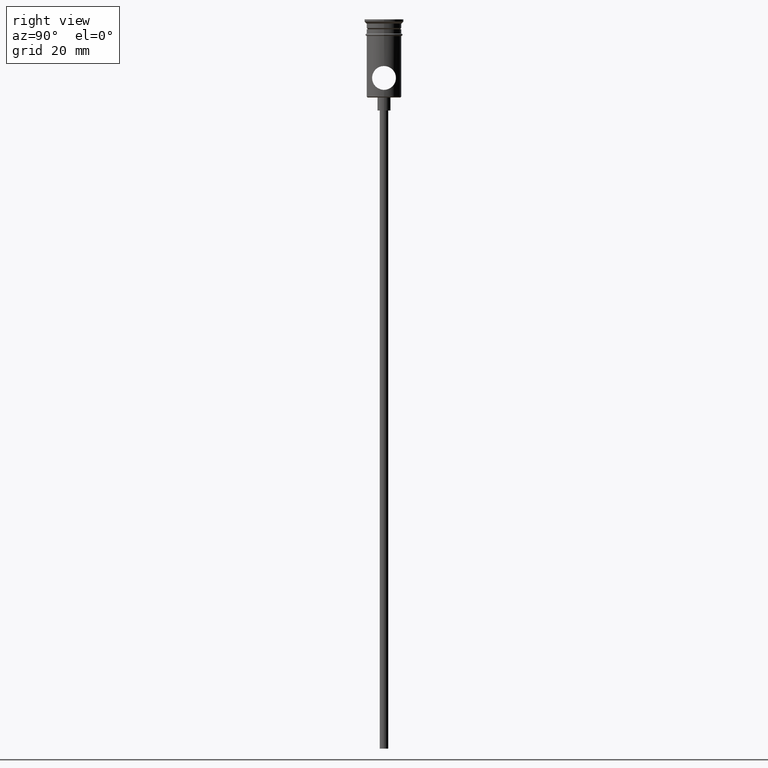
[diagram: clean part render]
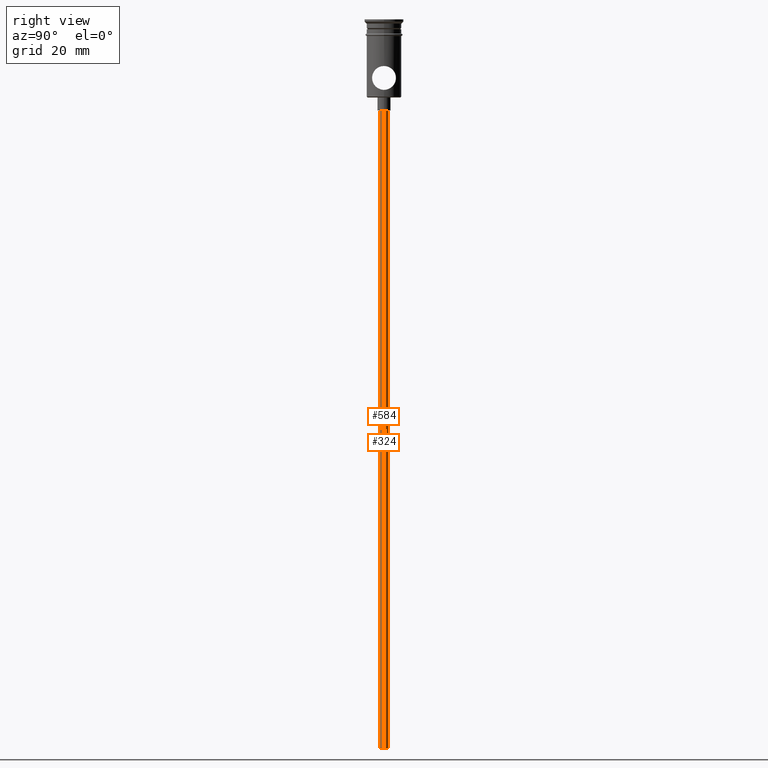
[diagram: same view with one multi-face feature highlighted, each face labeled with its STEP entity id]
A machine part, right view. The highlighted faces form ONE feature: a constant-radius fillet chain: 2 tangent blend faces with common blend radius 1 mm. The faces share edges in the B-rep.
Their STEP definitions:
[1] entity #584 (Cylinder):
#11 = CARTESIAN_POINT ( 'NONE',  ( 0.9999999999999997780, 0.000000000000000000, -167.9999999999999716 ) ) ;
#29 = DIRECTION ( 'NONE',  ( -1.000000000000000000, 0.000000000000000000, 0.000000000000000000 ) ) ;
#33 = CARTESIAN_POINT ( 'NONE',  ( -0.9999999999999997780, 1.224646799147352961E-16, -167.9999999999999716 ) ) ;
#123 = VECTOR ( 'NONE', #733, 1000.000000000000000 ) ;
#162 = CARTESIAN_POINT ( 'NONE',  ( -0.9999999999999997780, 1.224646799147352961E-16, -20.99999999999999645 ) ) ;
#173 = CIRCLE ( 'NONE', #218, 0.9999999999999997780 ) ;
#175 = ORIENTED_EDGE ( 'NONE', *, *, #540, .T. ) ;
#218 = AXIS2_PLACEMENT_3D ( 'NONE', #1120, #1025, #380 ) ;
#253 = ORIENTED_EDGE ( 'NONE', *, *, #410, .T. ) ;
#320 = CARTESIAN_POINT ( 'NONE',  ( -0.9999999999999997780, 1.224646799147352961E-16, -167.9999999999999716 ) ) ;
#338 = CARTESIAN_POINT ( 'NONE',  ( 0.000000000000000000, 0.000000000000000000, -167.9999999999999716 ) ) ;
#380 = DIRECTION ( 'NONE',  ( -1.000000000000000000, 0.000000000000000000, 0.000000000000000000 ) ) ;
#410 = EDGE_CURVE ( 'NONE', #1314, #692, #1172, .T. ) ;
#438 = ORIENTED_EDGE ( 'NONE', *, *, #446, .F. ) ;
#446 = EDGE_CURVE ( 'NONE', #658, #694, #1390, .T. ) ;
#505 = CYLINDRICAL_SURFACE ( 'NONE', #1089, 0.9999999999999997780 ) ;
#540 = EDGE_CURVE ( 'NONE', #692, #694, #173, .T. ) ;
#584 = ADVANCED_FACE ( 'NONE', ( #719 ), #505, .T. ) ;
#633 = CARTESIAN_POINT ( 'NONE',  ( 0.9999999999999997780, 0.000000000000000000, -167.9999999999999716 ) ) ;
#640 = DIRECTION ( 'NONE',  ( -0.000000000000000000, -0.000000000000000000, 1.000000000000000000 ) ) ;
#642 = VECTOR ( 'NONE', #1394, 1000.000000000000000 ) ;
#658 = VERTEX_POINT ( 'NONE', #33 ) ;
#692 = VERTEX_POINT ( 'NONE', #1347 ) ;
#694 = VERTEX_POINT ( 'NONE', #162 ) ;
#718 = CIRCLE ( 'NONE', #1285, 0.9999999999999997780 ) ;
#719 = FACE_OUTER_BOUND ( 'NONE', #881, .T. ) ;
#733 = DIRECTION ( 'NONE',  ( -0.000000000000000000, -0.000000000000000000, 1.000000000000000000 ) ) ;
#867 = EDGE_CURVE ( 'NONE', #1314, #658, #718, .T. ) ;
#881 = EDGE_LOOP ( 'NONE', ( #438, #1067, #253, #175 ) ) ;
#941 = CARTESIAN_POINT ( 'NONE',  ( 0.000000000000000000, 0.000000000000000000, -167.9999999999999716 ) ) ;
#1025 = DIRECTION ( 'NONE',  ( 0.000000000000000000, 0.000000000000000000, -1.000000000000000000 ) ) ;
#1067 = ORIENTED_EDGE ( 'NONE', *, *, #867, .F. ) ;
#1089 = AXIS2_PLACEMENT_3D ( 'NONE', #941, #640, #1395 ) ;
#1120 = CARTESIAN_POINT ( 'NONE',  ( 0.000000000000000000, 0.000000000000000000, -20.99999999999999645 ) ) ;
#1172 = LINE ( 'NONE', #633, #642 ) ;
#1195 = DIRECTION ( 'NONE',  ( 0.000000000000000000, 0.000000000000000000, -1.000000000000000000 ) ) ;
#1285 = AXIS2_PLACEMENT_3D ( 'NONE', #338, #1195, #29 ) ;
#1314 = VERTEX_POINT ( 'NONE', #11 ) ;
#1347 = CARTESIAN_POINT ( 'NONE',  ( 0.9999999999999997780, 0.000000000000000000, -20.99999999999999645 ) ) ;
#1390 = LINE ( 'NONE', #320, #123 ) ;
#1394 = DIRECTION ( 'NONE',  ( -0.000000000000000000, -0.000000000000000000, 1.000000000000000000 ) ) ;
#1395 = DIRECTION ( 'NONE',  ( 1.000000000000000000, 0.000000000000000000, 0.000000000000000000 ) ) ;
[2] entity #324 (Cylinder):
#5 = AXIS2_PLACEMENT_3D ( 'NONE', #823, #502, #699 ) ;
#11 = CARTESIAN_POINT ( 'NONE',  ( 0.9999999999999997780, 0.000000000000000000, -167.9999999999999716 ) ) ;
#33 = CARTESIAN_POINT ( 'NONE',  ( -0.9999999999999997780, 1.224646799147352961E-16, -167.9999999999999716 ) ) ;
#123 = VECTOR ( 'NONE', #733, 1000.000000000000000 ) ;
#162 = CARTESIAN_POINT ( 'NONE',  ( -0.9999999999999997780, 1.224646799147352961E-16, -20.99999999999999645 ) ) ;
#174 = EDGE_CURVE ( 'NONE', #658, #1314, #399, .T. ) ;
#178 = DIRECTION ( 'NONE',  ( 1.000000000000000000, 0.000000000000000000, 0.000000000000000000 ) ) ;
#213 = ORIENTED_EDGE ( 'NONE', *, *, #446, .T. ) ;
#308 = DIRECTION ( 'NONE',  ( 0.000000000000000000, 0.000000000000000000, -1.000000000000000000 ) ) ;
#320 = CARTESIAN_POINT ( 'NONE',  ( -0.9999999999999997780, 1.224646799147352961E-16, -167.9999999999999716 ) ) ;
#324 = ADVANCED_FACE ( 'NONE', ( #1355 ), #1368, .T. ) ;
#373 = DIRECTION ( 'NONE',  ( -0.000000000000000000, -0.000000000000000000, 1.000000000000000000 ) ) ;
#399 = CIRCLE ( 'NONE', #5, 0.9999999999999997780 ) ;
#410 = EDGE_CURVE ( 'NONE', #1314, #692, #1172, .T. ) ;
#446 = EDGE_CURVE ( 'NONE', #658, #694, #1390, .T. ) ;
#502 = DIRECTION ( 'NONE',  ( 0.000000000000000000, 0.000000000000000000, -1.000000000000000000 ) ) ;
#613 = CARTESIAN_POINT ( 'NONE',  ( 0.000000000000000000, 0.000000000000000000, -20.99999999999999645 ) ) ;
#633 = CARTESIAN_POINT ( 'NONE',  ( 0.9999999999999997780, 0.000000000000000000, -167.9999999999999716 ) ) ;
#642 = VECTOR ( 'NONE', #1394, 1000.000000000000000 ) ;
#658 = VERTEX_POINT ( 'NONE', #33 ) ;
#692 = VERTEX_POINT ( 'NONE', #1347 ) ;
#694 = VERTEX_POINT ( 'NONE', #162 ) ;
#699 = DIRECTION ( 'NONE',  ( -1.000000000000000000, 0.000000000000000000, 0.000000000000000000 ) ) ;
#733 = DIRECTION ( 'NONE',  ( -0.000000000000000000, -0.000000000000000000, 1.000000000000000000 ) ) ;
#823 = CARTESIAN_POINT ( 'NONE',  ( 0.000000000000000000, 0.000000000000000000, -167.9999999999999716 ) ) ;
#833 = AXIS2_PLACEMENT_3D ( 'NONE', #1236, #373, #178 ) ;
#964 = AXIS2_PLACEMENT_3D ( 'NONE', #613, #308, #1414 ) ;
#1066 = ORIENTED_EDGE ( 'NONE', *, *, #1222, .T. ) ;
#1172 = LINE ( 'NONE', #633, #642 ) ;
#1207 = EDGE_LOOP ( 'NONE', ( #1333, #213, #1066, #1286 ) ) ;
#1222 = EDGE_CURVE ( 'NONE', #694, #692, #1365, .T. ) ;
#1236 = CARTESIAN_POINT ( 'NONE',  ( 0.000000000000000000, 0.000000000000000000, -167.9999999999999716 ) ) ;
#1286 = ORIENTED_EDGE ( 'NONE', *, *, #410, .F. ) ;
#1314 = VERTEX_POINT ( 'NONE', #11 ) ;
#1333 = ORIENTED_EDGE ( 'NONE', *, *, #174, .F. ) ;
#1347 = CARTESIAN_POINT ( 'NONE',  ( 0.9999999999999997780, 0.000000000000000000, -20.99999999999999645 ) ) ;
#1355 = FACE_OUTER_BOUND ( 'NONE', #1207, .T. ) ;
#1365 = CIRCLE ( 'NONE', #964, 0.9999999999999997780 ) ;
#1368 = CYLINDRICAL_SURFACE ( 'NONE', #833, 0.9999999999999997780 ) ;
#1390 = LINE ( 'NONE', #320, #123 ) ;
#1394 = DIRECTION ( 'NONE',  ( -0.000000000000000000, -0.000000000000000000, 1.000000000000000000 ) ) ;
#1414 = DIRECTION ( 'NONE',  ( -1.000000000000000000, 0.000000000000000000, 0.000000000000000000 ) ) ;